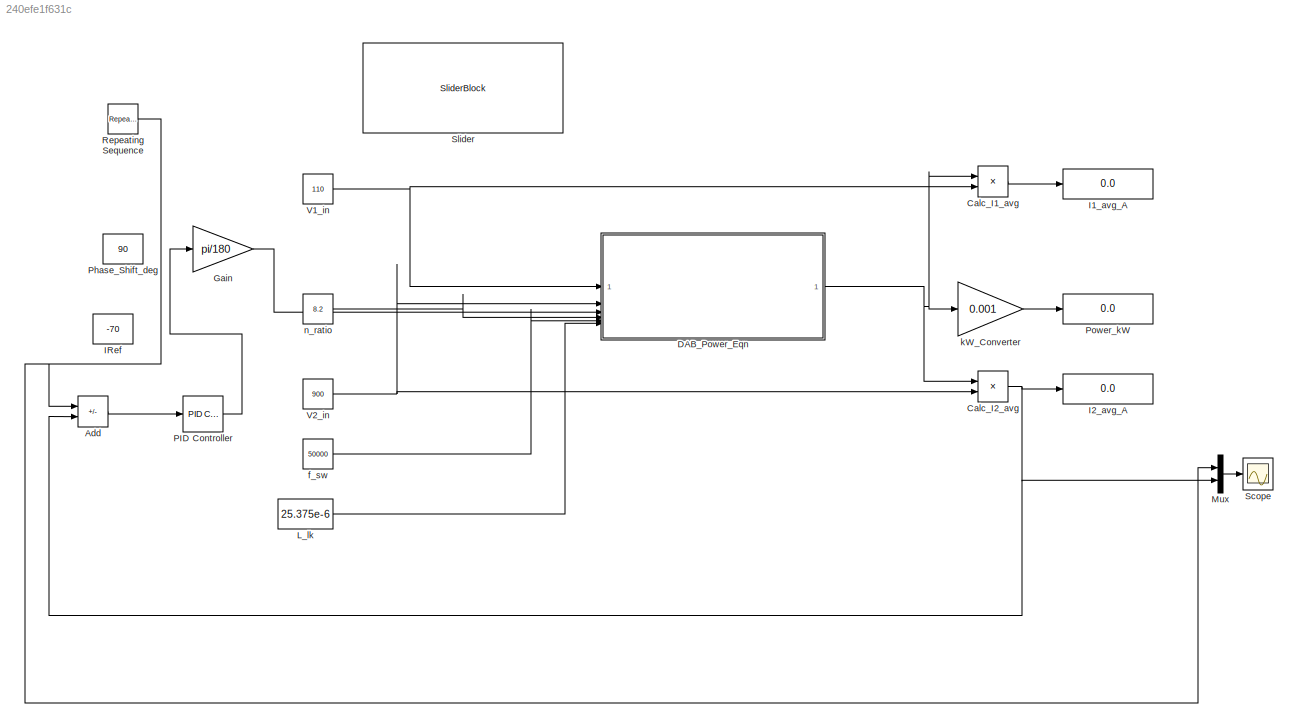
MODEL slx_240efe1f631c
KIND model
CONFIG AbsTol = auto
CONFIG EnableMultiTasking = off
CONFIG FixedStep = auto
CONFIG MaxStep = auto
CONFIG MinStep = auto
CONFIG RelTol = 1e-3
CONFIG SampleTimeConstraint = Unconstrained
CONFIG SolverName = VariableStepAuto
CONFIG StartTime = 0.0
CONFIG StopTime = 100
BLOCK [Sum] Add
  IconShape = rectangular
  Inputs = +-
BLOCK [Product] Calc_I1_avg
  Inputs = */
BLOCK [Product] Calc_I2_avg
  Inputs = */
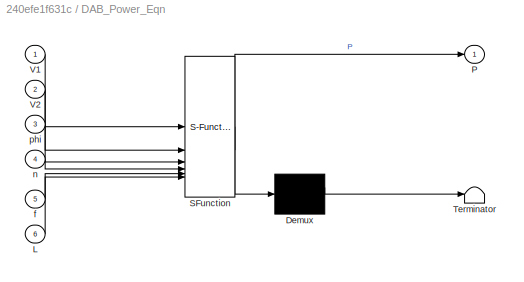
BLOCK [SubSystem] DAB_Power_Eqn
  ErrorFcn = Stateflow.Translate.translate
  PermitHierarchicalResolution = ExplicitOnly
  SFBlockType = MATLAB Function
  TreatAsAtomicUnit = on
BLOCK [Demux] DAB_Power_Eqn/ Demux 
  Outputs = 1
BLOCK [S-Function] DAB_Power_Eqn/ SFunction 
  EnableBusSupport = on
  FunctionName = sf_sfun
  PortCounts = [6 2]
  SFcnIsStateOwnerBlock = off
  SFunctionDeploymentMode = off
  Tag = Stateflow S-Function 2
BLOCK [Terminator] DAB_Power_Eqn/ Terminator 
BLOCK [Inport] DAB_Power_Eqn/L
  Port = 6
BLOCK [Outport] DAB_Power_Eqn/P
BLOCK [Inport] DAB_Power_Eqn/V1
BLOCK [Inport] DAB_Power_Eqn/V2
  Port = 2
BLOCK [Inport] DAB_Power_Eqn/f
  Port = 5
BLOCK [Inport] DAB_Power_Eqn/n
  Port = 4
BLOCK [Inport] DAB_Power_Eqn/phi
  Port = 3
BLOCK [Gain] Gain
  Gain = pi/180
BLOCK [Display] I1_avg_A
  Decimation = 1
BLOCK [Display] I2_avg_A
  Decimation = 1
BLOCK [Constant] IRef
  Value = -70
BLOCK [Constant] L_lk
  Value = 25.375e-6
BLOCK [Mux] Mux
  DisplayOption = bar
  Inputs = 2
BLOCK [Reference] PID Controller  REF=slpidlib/PID Controller
  LibrarySourceBlock = simulink/Continuous/PID Controller
  SourceBlock = slpidlib/PID Controller
  SourceType = PID 1dof
BLOCK [Constant] Phase_Shift_deg
  Value = 90
BLOCK [Display] Power_kW
  Decimation = 1
BLOCK [Reference] Repeating Sequence  REF=simulink/Sources/Repeating
Sequence
  SourceBlock = simulink/Sources/Repeating\nSequence
  SourceType = Repeating table
BLOCK [Scope] Scope
  Floating = off
  NumInputPorts = 1
  ScopeSpecificationString = Simulink.scopes.TimeScopeBlockCfg('CurrentConfiguration', extmgr.ConfigurationSet(extmgr.Configuration('Core','General UI',true),extmgr.Configuration('Core','Source UI',true),extmgr.Configuration('Sources','WiredSimulink',true),extmgr.Configuration('Visuals','Time Domain',true,'SerializedDisplays',{struct('MinYLimReal','-81.64737','MaxYLimReal','75.12691','YLabelReal','','MinYLimMag','0.00000','Ma...<+1457ch>
BLOCK [SliderBlock] Slider
  ScaleMax = 90
  ScaleMin = -90
BLOCK [Constant] V1_in
  Value = 110
BLOCK [Constant] V2_in
  Value = 900
BLOCK [Constant] f_sw
  Value = 50000
BLOCK [Gain] kW_Converter
  Gain = 0.001
BLOCK [Constant] n_ratio
  Value = 8.2
LINE Add:1 -> PID Controller:1
LINE Calc_I1_avg:1 -> I1_avg_A:1
NET Calc_I2_avg:1 -> Add:2, I2_avg_A:1, Mux:2
NET DAB_Power_Eqn:1 -> Calc_I1_avg:1, Calc_I2_avg:1, kW_Converter:1
LINE Gain:1 -> DAB_Power_Eqn:3
LINE L_lk:1 -> DAB_Power_Eqn:6
LINE Mux:1 -> Scope:1
LINE PID Controller:1 -> Gain:1
NET Repeating Sequence:1 -> Add:1, Mux:1
NET V1_in:1 -> Calc_I1_avg:2, DAB_Power_Eqn:1
NET V2_in:1 -> Calc_I2_avg:2, DAB_Power_Eqn:2
LINE f_sw:1 -> DAB_Power_Eqn:5
LINE kW_Converter:1 -> Power_kW:1
LINE n_ratio:1 -> DAB_Power_Eqn:4
note: NET lines group one-source signal fan-out (src -> all destinations, sorted); 1:1 wires keep LINE
CHART DAB_Power_Eqn states=1 transitions=1
  STATE_LABEL 'eML_blk_kernel()'
  STATE_LABEL 'SCRIPT:\nfunction P = dab_power(V1, V2, phi, n, f, L)   % This is a more explicit version to satisfy the code analyzer. \\n   % Define a constant for pi. \\n   \nPI_CONST = 3.1415926535;  % Calculate the main gain term. \\n   \nK = (n * V1 * V2) / (2 * PI_CONST * f * L); % Calculate the term dependent on the phase shift. \\n   \nphi_term = phi * (1 - abs(phi)/PI_CONST); % Assign the final output. \\n  \nP =...<+14ch>'
CHART  states=0 transitions=0
